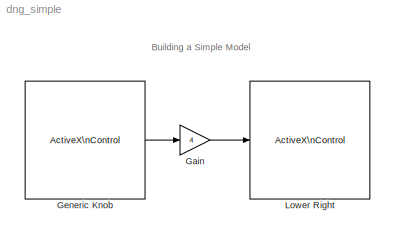
MODEL dng_simple
KIND model
CONFIG AbsTol = auto
CONFIG FixedStep = auto
CONFIG MaxStep = auto
CONFIG MinStep = auto
CONFIG RelTol = 1e-3
CONFIG Solver = ode45
CONFIG SolverMode = Auto
CONFIG StartTime = 0.0
CONFIG StopTime = inf
BLOCK [Gain] Gain 
  Gain = 4
BLOCK [Reference] Generic Knob    REF=dnglibv1/ActiveX\nControl
  Ports = [0, 1]
  SourceBlock = dnglibv1/ActiveX\nControl
  SourceType = ActiveX Block
  border = on
  connect = output
  dialOut = 8.97752222299693
  dialOutEvent = Turn Click
  inblock = on
  init = hActx.MouseControl=2;
  output = KnobValue
  progid = mwknob.knobctrl.1
  updateParam = 0
BLOCK [Reference] Lower Right    REF=dnglibv1/ActiveX\nControl
  Ports = [1]
  SourceBlock = dnglibv1/ActiveX\nControl
  SourceType = ActiveX Block
  border = on
  connect = input
  dialOut = 0
  inblock = on
  init = hActx.configuration='Angular Gauge\\Corners\\Lower Right';
  input = NeedleValue
  progid = mwagauge.agaugectrl.1
  updateParam = 0
ANNOTATION (root): Building a Simple Model
LINE Gain :1 -> Lower Right  :1
LINE Generic Knob  :1 -> Gain :1
